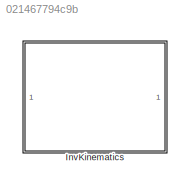
MODEL slx_021467794c9b
KIND model
CONFIG AbsTol = auto
CONFIG EnableMultiTasking = off
CONFIG FixedStep = dt
CONFIG MaxStep = auto
CONFIG MinStep = auto
CONFIG RelTol = 1e-3
CONFIG SampleTimeConstraint = Unconstrained
CONFIG Solver = FixedStepAuto
CONFIG SolverName = FixedStepAuto
CONFIG StartTime = 0.0
CONFIG StopTime = t_final
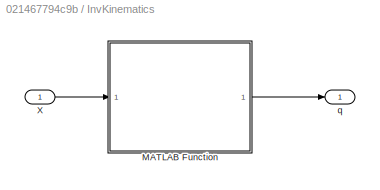
BLOCK [SubSystem] InvKinematics
  Ports = [1, 1]
  RequestExecContextInheritance = off
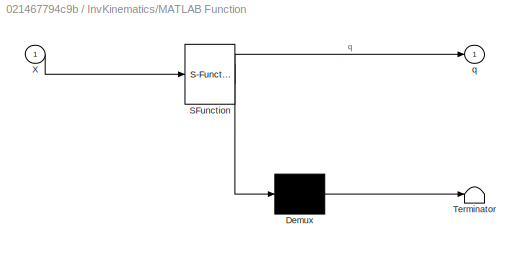
BLOCK [SubSystem] InvKinematics/MATLAB Function
  ErrorFcn = Stateflow.Translate.translate
  PermitHierarchicalResolution = ExplicitOnly
  Ports = [1, 1]
  RequestExecContextInheritance = off
  SFBlockType = MATLAB Function
  TreatAsAtomicUnit = on
BLOCK [Demux] InvKinematics/MATLAB Function/ Demux 
  Outputs = 1
  Ports = [1, 1]
BLOCK [S-Function] InvKinematics/MATLAB Function/ SFunction 
  EnableBusSupport = on
  FunctionName = sf_sfun
  PortCounts = [1 2]
  Ports = [1, 2]
  SFcnIsStateOwnerBlock = off
  SFunctionDeploymentMode = off
  Tag = Stateflow S-Function 1
BLOCK [Terminator] InvKinematics/MATLAB Function/ Terminator 
BLOCK [Inport] InvKinematics/MATLAB Function/X
BLOCK [Outport] InvKinematics/MATLAB Function/q
BLOCK [Inport] InvKinematics/X
BLOCK [Outport] InvKinematics/q
LINE InvKinematics/MATLAB Function:1 -> InvKinematics/q:1
LINE InvKinematics/X:1 -> InvKinematics/MATLAB Function:1
CHART InvKinematics/MATLAB Function states=1 transitions=1
  STATE_LABEL 'eML_blk_kernel()'
  STATE_LABEL 'SCRIPT:\nfunction q = INVKinematics(X)\n%%% Inverse Kinematic Function\n% X is 3*1 vecto of end-effector position in task space, X = [x;y;z]\nx = X(1);\ny = X(2);\nz = X(3);\n\n%% general physical parameters\nl1 = 0.6731;\nl2 = 0.432;\nl3 = 0.434;\nlc2 = 0.216;\nlc3 = 0.164;\n\nr = sqrt(x^2 + y^2);\nR = sqrt(r^2 + (z-l1)^2);\na = atan2(r, z-l1);\n\n%% Inverse Kinematics\n% q is 3*1 vector of joint variables (radian),...<+214ch>'
CHART  states=0 transitions=0
